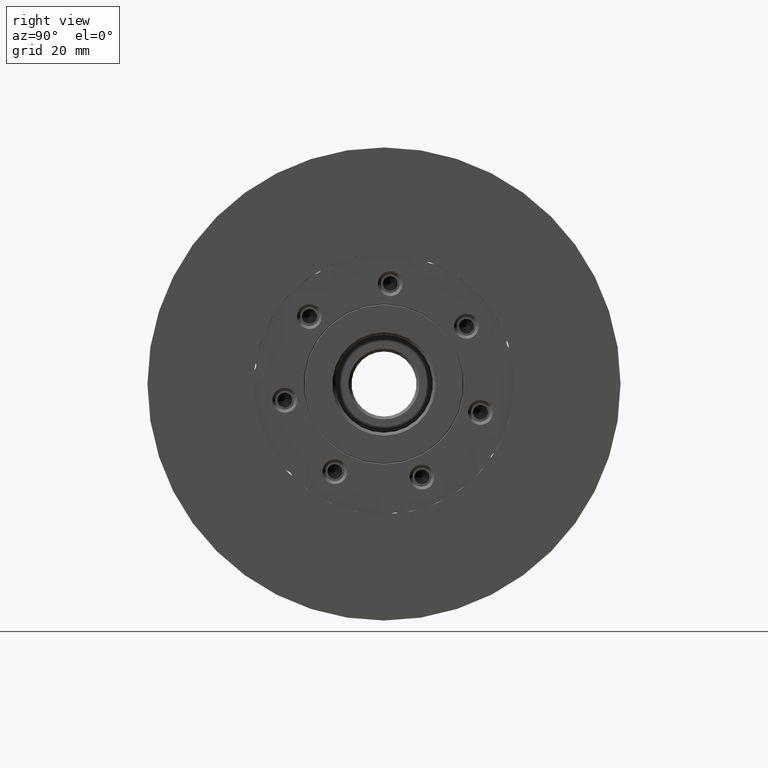
[diagram: clean part render]
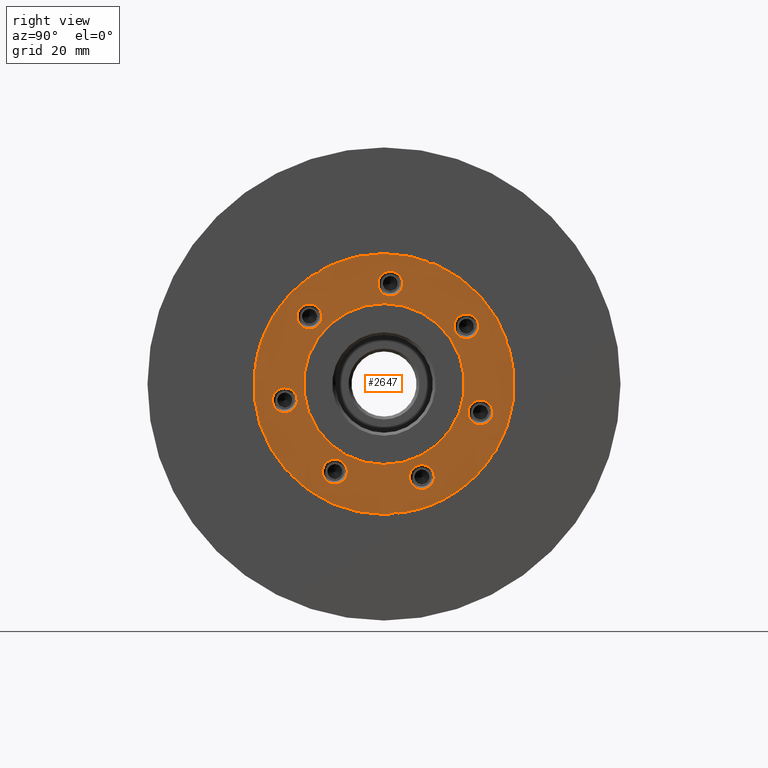
[diagram: same view with one face highlighted and labeled with its STEP entity id]
A machine part, right view. The second image highlights one B-rep face of the part: STEP entity #2647.
In plain terms, the highlighted planar face has unit normal (1, 0, 0).
Its self-contained STEP definition (entity closure, byte-faithful):
#30 = DIRECTION ( 'NONE',  ( 1.000000000000000000, -0.0000000000000000000, -0.0000000000000000000 ) ) ;
#48 = CARTESIAN_POINT ( 'NONE',  ( 2.168404344971008868E-16, 6.407592393557265176, -15.74619826237518083 ) ) ;
#54 = CIRCLE ( 'NONE', #1834, 1.250000000000003553 ) ;
#65 = AXIS2_PLACEMENT_3D ( 'NONE', #4775, #3055, #3079 ) ;
#90 = CARTESIAN_POINT ( 'NONE',  ( 2.168404344971008868E-16, -9.226960871004672882, -12.93521687214729177 ) ) ;
#96 = CARTESIAN_POINT ( 'NONE',  ( 2.168404344971008868E-16, -17.68838749271110800, -4.635116553352929714 ) ) ;
#98 = CARTESIAN_POINT ( 'NONE',  ( 0.0000000000000000000, 2.701493101390960053E-15, 22.05936522491092688 ) ) ;
#109 = CARTESIAN_POINT ( 'NONE',  ( 0.0000000000000000000, 18.74930789117468777, -11.62235121341391952 ) ) ;
#172 = EDGE_CURVE ( 'NONE', #487, #412, #4132, .T. ) ;
#192 = EDGE_CURVE ( 'NONE', #3774, #4154, #4298, .T. ) ;
#228 = CARTESIAN_POINT ( 'NONE',  ( 0.0000000000000000000, 12.50000000000000000, 0.0000000000000000000 ) ) ;
#241 = CIRCLE ( 'NONE', #5239, 1.250000000000005551 ) ;
#244 = CIRCLE ( 'NONE', #2379, 2.100000000000005418 ) ;
#252 = DIRECTION ( 'NONE',  ( 1.000000000000000000, 0.0000000000000000000, -0.0000000000000000000 ) ) ;
#321 = DIRECTION ( 'NONE',  ( -1.000000000000000000, -0.0000000000000000000, -0.0000000000000000000 ) ) ;
#322 = AXIS2_PLACEMENT_3D ( 'NONE', #1557, #3201, #4866 ) ;
#353 = CIRCLE ( 'NONE', #5300, 1.250000000000004441 ) ;
#362 = DIRECTION ( 'NONE',  ( 1.000000000000000000, 0.0000000000000000000, 0.0000000000000000000 ) ) ;
#412 = VERTEX_POINT ( 'NONE', #4202 ) ;
#413 = CARTESIAN_POINT ( 'NONE',  ( 0.0000000000000000000, 0.0000000000000000000, -22.05936522491092688 ) ) ;
#415 = AXIS2_PLACEMENT_3D ( 'NONE', #5198, #3024, #4752 ) ;
#418 = VERTEX_POINT ( 'NONE', #4700 ) ;
#420 = AXIS2_PLACEMENT_3D ( 'NONE', #3725, #2854, #1224 ) ;
#421 = CARTESIAN_POINT ( 'NONE',  ( 0.0000000000000000000, 20.77672234100439042, 7.412381728622628785 ) ) ;
#432 = DIRECTION ( 'NONE',  ( 0.0000000000000000000, -0.4338837391175529579, -0.9009688679024216995 ) ) ;
#440 = CIRCLE ( 'NONE', #5435, 2.100000000000004530 ) ;
#441 = CIRCLE ( 'NONE', #2128, 7.142357545004236030 ) ;
#446 = VERTEX_POINT ( 'NONE', #1816 ) ;
#455 = ORIENTED_EDGE ( 'NONE', *, *, #1678, .F. ) ;
#467 = CARTESIAN_POINT ( 'NONE',  ( 2.168404344971008868E-16, 13.92558475291284736, 9.750799417967803251 ) ) ;
#468 = DIRECTION ( 'NONE',  ( 0.0000000000000000000, 0.0000000000000000000, -1.000000000000000000 ) ) ;
#470 = DIRECTION ( 'NONE',  ( 0.0000000000000000000, 0.7818314824680225872, 0.6234898018587425872 ) ) ;
#471 = EDGE_CURVE ( 'NONE', #3968, #4335, #4358, .T. ) ;
#472 = VERTEX_POINT ( 'NONE', #1794 ) ;
#477 = CARTESIAN_POINT ( 'NONE',  ( 2.168404344971008868E-16, 8.454941009139103514, -16.21349222368342069 ) ) ;
#487 = VERTEX_POINT ( 'NONE', #591 ) ;
#501 = DIRECTION ( 'NONE',  ( 0.0000000000000000000, -0.9749279121818229532, -0.2225209339563177513 ) ) ;
#512 = AXIS2_PLACEMENT_3D ( 'NONE', #3441, #1380, #2598 ) ;
#524 = CIRCLE ( 'NONE', #3208, 2.100000000000004530 ) ;
#557 = ORIENTED_EDGE ( 'NONE', *, *, #4988, .F. ) ;
#581 = ORIENTED_EDGE ( 'NONE', *, *, #4043, .T. ) ;
#591 = CARTESIAN_POINT ( 'NONE',  ( 0.0000000000000000000, -21.93529190647909743, 2.336356801424459562 ) ) ;
#629 = ORIENTED_EDGE ( 'NONE', *, *, #684, .F. ) ;
#635 = CARTESIAN_POINT ( 'NONE',  ( 0.0000000000000000000, 8.177388263898873078, 21.59005143999080190 ) ) ;
#659 = DIRECTION ( 'NONE',  ( 0.0000000000000000000, 0.4338837391175657809, -0.9009688679024154823 ) ) ;
#672 = ORIENTED_EDGE ( 'NONE', *, *, #1714, .T. ) ;
#684 = EDGE_CURVE ( 'NONE', #1924, #4154, #3151, .T. ) ;
#685 = EDGE_LOOP ( 'NONE', ( #5160, #4007 ) ) ;
#686 = CARTESIAN_POINT ( 'NONE',  ( 2.168404344971008868E-16, 6.407592393557265176, -15.74619826237518083 ) ) ;
#700 = CIRCLE ( 'NONE', #1578, 1.250000000000005107 ) ;
#706 = EDGE_CURVE ( 'NONE', #1157, #3325, #1582, .T. ) ;
#721 = EDGE_LOOP ( 'NONE', ( #2164, #2342 ) ) ;
#736 = EDGE_LOOP ( 'NONE', ( #4777, #837 ) ) ;
#737 = DIRECTION ( 'NONE',  ( -1.000000000000000000, -0.0000000000000000000, 0.0000000000000000000 ) ) ;
#756 = EDGE_CURVE ( 'NONE', #4335, #3968, #3690, .T. ) ;
#762 = CARTESIAN_POINT ( 'NONE',  ( 0.0000000000000000000, 1.665519646840398252E-15, 13.59999999999998543 ) ) ;
#767 = CARTESIAN_POINT ( 'NONE',  ( 0.0000000000000000000, -11.78126373550882455, 19.85451648352043463 ) ) ;
#775 = AXIS2_PLACEMENT_3D ( 'NONE', #5075, #3408, #3388 ) ;
#792 = EDGE_CURVE ( 'NONE', #4845, #1670, #3568, .T. ) ;
#814 = CARTESIAN_POINT ( 'NONE',  ( 0.0000000000000000000, 2.603282183109349557, -21.90521663899069793 ) ) ;
#820 = VERTEX_POINT ( 'NONE', #4325 ) ;
#826 = FACE_BOUND ( 'NONE', #4886, .T. ) ;
#837 = ORIENTED_EDGE ( 'NONE', *, *, #2545, .T. ) ;
#849 = AXIS2_PLACEMENT_3D ( 'NONE', #1211, #737, #3606 ) ;
#868 = CARTESIAN_POINT ( 'NONE',  ( 2.168404344971008868E-16, 13.92558475291284736, 7.650799417967799165 ) ) ;
#887 = VERTEX_POINT ( 'NONE', #2612 ) ;
#898 = CARTESIAN_POINT ( 'NONE',  ( 0.0000000000000000000, -16.73514449304702723, -15.90392840768713256 ) ) ;
#948 = EDGE_CURVE ( 'NONE', #1928, #2477, #54, .T. ) ;
#982 = CIRCLE ( 'NONE', #4218, 2.100000000000005418 ) ;
#996 = AXIS2_PLACEMENT_3D ( 'NONE', #4174, #4956, #5409 ) ;
#1000 = CARTESIAN_POINT ( 'NONE',  ( 0.0000000000000000000, 1.025544863782607674, -22.03551342397945234 ) ) ;
#1005 = DIRECTION ( 'NONE',  ( 0.0000000000000000000, 0.0000000000000000000, -1.000000000000000000 ) ) ;
#1017 = CARTESIAN_POINT ( 'NONE',  ( 2.168404344971008868E-16, 14.66409592937600870, -6.117265158434206818 ) ) ;
#1027 = VERTEX_POINT ( 'NONE', #5179 ) ;
#1041 = ORIENTED_EDGE ( 'NONE', *, *, #1943, .T. ) ;
#1056 = EDGE_CURVE ( 'NONE', #4499, #3840, #3744, .T. ) ;
#1060 = DIRECTION ( 'NONE',  ( 1.000000000000000000, 0.0000000000000000000, 0.0000000000000000000 ) ) ;
#1072 = ORIENTED_EDGE ( 'NONE', *, *, #2610, .T. ) ;
#1082 = VERTEX_POINT ( 'NONE', #4492 ) ;
#1095 = CIRCLE ( 'NONE', #2811, 2.100000000000005862 ) ;
#1099 = DIRECTION ( 'NONE',  ( 0.0000000000000000000, 0.0000000000000000000, -1.000000000000000000 ) ) ;
#1100 = CIRCLE ( 'NONE', #4070, 2.100000000000004530 ) ;
#1111 = DIRECTION ( 'NONE',  ( -1.000000000000000000, 0.0000000000000000000, 0.0000000000000000000 ) ) ;
#1115 = CIRCLE ( 'NONE', #3237, 22.05936522491092688 ) ;
#1127 = VERTEX_POINT ( 'NONE', #96 ) ;
#1137 = EDGE_CURVE ( 'NONE', #4993, #472, #4205, .T. ) ;
#1141 = ORIENTED_EDGE ( 'NONE', *, *, #2253, .F. ) ;
#1142 = CARTESIAN_POINT ( 'NONE',  ( 0.0000000000000000000, 0.0000000000000000000, 0.0000000000000000000 ) ) ;
#1157 = VERTEX_POINT ( 'NONE', #5153 ) ;
#1211 = CARTESIAN_POINT ( 'NONE',  ( 2.168404344971008868E-16, 16.30594204255886126, -4.807936574530843110 ) ) ;
#1223 = CIRCLE ( 'NONE', #3920, 2.100000000000005418 ) ;
#1224 = DIRECTION ( 'NONE',  ( 0.0000000000000000000, 0.9749279121818257288, -0.2225209339563046507 ) ) ;
#1259 = ORIENTED_EDGE ( 'NONE', *, *, #706, .T. ) ;
#1265 = CARTESIAN_POINT ( 'NONE',  ( 0.0000000000000000000, 20.91006721983055172, 6.418700580537457512 ) ) ;
#1314 = DIRECTION ( 'NONE',  ( 0.0000000000000000000, 0.0000000000000000000, -1.000000000000000000 ) ) ;
#1324 = EDGE_CURVE ( 'NONE', #1082, #3149, #2337, .T. ) ;
#1336 = ORIENTED_EDGE ( 'NONE', *, *, #4693, .T. ) ;
#1338 = ORIENTED_EDGE ( 'NONE', *, *, #1324, .T. ) ;
#1356 = VERTEX_POINT ( 'NONE', #109 ) ;
#1364 = FACE_BOUND ( 'NONE', #721, .T. ) ;
#1371 = EDGE_CURVE ( 'NONE', #3126, #4845, #2602, .T. ) ;
#1380 = DIRECTION ( 'NONE',  ( 1.000000000000000000, 0.0000000000000000000, 0.0000000000000000000 ) ) ;
#1415 = EDGE_LOOP ( 'NONE', ( #1474, #2112, #629, #3128, #4180, #4421, #4577, #3098, #1682, #3902, #581, #3648, #455, #4779, #2102, #1259, #2255, #4703, #4086, #557, #1915, #3376, #672, #1141 ) ) ;
#1423 = VERTEX_POINT ( 'NONE', #90 ) ;
#1466 = DIRECTION ( 'NONE',  ( 0.0000000000000000000, 0.0000000000000000000, -1.000000000000000000 ) ) ;
#1474 = ORIENTED_EDGE ( 'NONE', *, *, #2048, .F. ) ;
#1484 = AXIS2_PLACEMENT_3D ( 'NONE', #4716, #5095, #1314 ) ;
#1508 = CARTESIAN_POINT ( 'NONE',  ( 0.0000000000000000000, 3.862726624353945759, -28.59018129948315945 ) ) ;
#1519 = AXIS2_PLACEMENT_3D ( 'NONE', #1699, #2101, #2514 ) ;
#1526 = AXIS2_PLACEMENT_3D ( 'NONE', #5370, #321, #2827 ) ;
#1557 = CARTESIAN_POINT ( 'NONE',  ( 0.0000000000000000000, 0.0000000000000000000, 0.0000000000000000000 ) ) ;
#1571 = CARTESIAN_POINT ( 'NONE',  ( 0.0000000000000000000, -15.88501119802953454, 24.08288900755649564 ) ) ;
#1578 = AXIS2_PLACEMENT_3D ( 'NONE', #5227, #4830, #2749 ) ;
#1582 = CIRCLE ( 'NONE', #2927, 22.05936522491092688 ) ;
#1605 = CARTESIAN_POINT ( 'NONE',  ( 0.0000000000000000000, -28.73290329927412046, 2.596033841530536179 ) ) ;
#1627 = EDGE_CURVE ( 'NONE', #887, #5292, #3487, .T. ) ;
#1670 = VERTEX_POINT ( 'NONE', #4909 ) ;
#1678 = EDGE_CURVE ( 'NONE', #2748, #472, #441, .T. ) ;
#1682 = ORIENTED_EDGE ( 'NONE', *, *, #3119, .F. ) ;
#1699 = CARTESIAN_POINT ( 'NONE',  ( 0.0000000000000000000, 8.924618330507765762, 27.43483754948394449 ) ) ;
#1714 = EDGE_CURVE ( 'NONE', #5292, #3050, #1830, .T. ) ;
#1716 = CARTESIAN_POINT ( 'NONE',  ( 0.0000000000000000000, 0.0000000000000000000, 0.0000000000000000000 ) ) ;
#1737 = VERTEX_POINT ( 'NONE', #2914 ) ;
#1746 = CARTESIAN_POINT ( 'NONE',  ( 2.168404344971008868E-16, 13.92558475291284736, 11.85079941796780822 ) ) ;
#1794 = CARTESIAN_POINT ( 'NONE',  ( 0.0000000000000000000, -10.48483495267685228, 19.40834434312044721 ) ) ;
#1816 = CARTESIAN_POINT ( 'NONE',  ( 0.0000000000000000000, 8.636866962865870079, 20.29827882338218359 ) ) ;
#1830 = CIRCLE ( 'NONE', #3052, 22.05936522491092688 ) ;
#1834 = AXIS2_PLACEMENT_3D ( 'NONE', #635, #1060, #4107 ) ;
#1871 = AXIS2_PLACEMENT_3D ( 'NONE', #2963, #2145, #468 ) ;
#1895 = CARTESIAN_POINT ( 'NONE',  ( 0.0000000000000000000, 17.86747489113111342, -12.93711463738374690 ) ) ;
#1902 = AXIS2_PLACEMENT_3D ( 'NONE', #3860, #3917, #2185 ) ;
#1915 = ORIENTED_EDGE ( 'NONE', *, *, #2031, .F. ) ;
#1920 = EDGE_CURVE ( 'NONE', #3149, #1082, #982, .T. ) ;
#1922 = EDGE_LOOP ( 'NONE', ( #1072, #3644 ) ) ;
#1924 = VERTEX_POINT ( 'NONE', #5441 ) ;
#1925 = AXIS2_PLACEMENT_3D ( 'NONE', #1716, #30, #3841 ) ;
#1927 = DIRECTION ( 'NONE',  ( 0.0000000000000000000, 0.9749279121818257288, -0.2225209339563052058 ) ) ;
#1928 = VERTEX_POINT ( 'NONE', #3772 ) ;
#1943 = EDGE_CURVE ( 'NONE', #1027, #1423, #4341, .T. ) ;
#1988 = CARTESIAN_POINT ( 'NONE',  ( 0.0000000000000000000, -10.91069804274972554, 18.95751293024381212 ) ) ;
#2008 = CIRCLE ( 'NONE', #4804, 1.250000000000004441 ) ;
#2031 = EDGE_CURVE ( 'NONE', #887, #2819, #241, .T. ) ;
#2046 = DIRECTION ( 'NONE',  ( 0.0000000000000000000, -0.4338837391175650038, 0.9009688679024158153 ) ) ;
#2048 = EDGE_CURVE ( 'NONE', #3774, #1737, #3257, .T. ) ;
#2093 = CIRCLE ( 'NONE', #1519, 7.142357545004235142 ) ;
#2101 = DIRECTION ( 'NONE',  ( 1.000000000000000000, 0.0000000000000000000, 0.0000000000000000000 ) ) ;
#2102 = ORIENTED_EDGE ( 'NONE', *, *, #4718, .F. ) ;
#2112 = ORIENTED_EDGE ( 'NONE', *, *, #192, .T. ) ;
#2120 = DIRECTION ( 'NONE',  ( -1.000000000000000000, 0.0000000000000000000, -0.0000000000000000000 ) ) ;
#2124 = EDGE_LOOP ( 'NONE', ( #2240, #3304 ) ) ;
#2125 = DIRECTION ( 'NONE',  ( 1.000000000000000000, -0.0000000000000000000, -0.0000000000000000000 ) ) ;
#2128 = AXIS2_PLACEMENT_3D ( 'NONE', #1571, #362, #2046 ) ;
#2130 = DIRECTION ( 'NONE',  ( 1.000000000000000000, 0.0000000000000000000, 0.0000000000000000000 ) ) ;
#2145 = DIRECTION ( 'NONE',  ( 1.000000000000000000, -0.0000000000000000000, -0.0000000000000000000 ) ) ;
#2164 = ORIENTED_EDGE ( 'NONE', *, *, #471, .T. ) ;
#2168 = DIRECTION ( 'NONE',  ( 1.000000000000000000, 0.0000000000000000000, -0.0000000000000000000 ) ) ;
#2177 = DIRECTION ( 'NONE',  ( -1.000000000000000000, 0.0000000000000000000, 0.0000000000000000000 ) ) ;
#2180 = CARTESIAN_POINT ( 'NONE',  ( 0.0000000000000000000, 21.97830011226928804, 7.067837305358956712 ) ) ;
#2185 = DIRECTION ( 'NONE',  ( 0.0000000000000000000, 0.0000000000000000000, -1.000000000000000000 ) ) ;
#2195 = CARTESIAN_POINT ( 'NONE',  ( 2.168404344971008868E-16, -8.315805018857782116, -14.82725149474236837 ) ) ;
#2225 = EDGE_CURVE ( 'NONE', #1356, #1924, #700, .T. ) ;
#2240 = ORIENTED_EDGE ( 'NONE', *, *, #4928, .T. ) ;
#2248 = ORIENTED_EDGE ( 'NONE', *, *, #4427, .T. ) ;
#2253 = EDGE_CURVE ( 'NONE', #1737, #3050, #2451, .T. ) ;
#2255 = ORIENTED_EDGE ( 'NONE', *, *, #4260, .F. ) ;
#2258 = ORIENTED_EDGE ( 'NONE', *, *, #4849, .T. ) ;
#2275 = AXIS2_PLACEMENT_3D ( 'NONE', #228, #252, #4862 ) ;
#2328 = EDGE_CURVE ( 'NONE', #1356, #1670, #5238, .T. ) ;
#2337 = CIRCLE ( 'NONE', #3892, 2.100000000000005418 ) ;
#2342 = ORIENTED_EDGE ( 'NONE', *, *, #756, .T. ) ;
#2352 = DIRECTION ( 'NONE',  ( 1.000000000000000000, -0.0000000000000000000, -0.0000000000000000000 ) ) ;
#2379 = AXIS2_PLACEMENT_3D ( 'NONE', #2917, #4659, #3825 ) ;
#2397 = EDGE_CURVE ( 'NONE', #5326, #2570, #1100, .T. ) ;
#2401 = EDGE_LOOP ( 'NONE', ( #5208, #1338 ) ) ;
#2451 = CIRCLE ( 'NONE', #5134, 7.142357545004237807 ) ;
#2463 = CARTESIAN_POINT ( 'NONE',  ( 2.168404344971008868E-16, 17.94778815574171205, -3.498607990627480291 ) ) ;
#2477 = VERTEX_POINT ( 'NONE', #5396 ) ;
#2487 = CARTESIAN_POINT ( 'NONE',  ( 2.168404344971008868E-16, 1.058978114162429041, 16.96698456867704863 ) ) ;
#2514 = DIRECTION ( 'NONE',  ( 0.0000000000000000000, 0.4338837391175526803, 0.9009688679024216995 ) ) ;
#2545 = EDGE_CURVE ( 'NONE', #4475, #820, #1223, .T. ) ;
#2559 = EDGE_CURVE ( 'NONE', #1127, #418, #1095, .T. ) ;
#2565 = CARTESIAN_POINT ( 'NONE',  ( 2.168404344971008868E-16, -14.65240925935094829, 10.93939031445315813 ) ) ;
#2570 = VERTEX_POINT ( 'NONE', #4227 ) ;
#2580 = CIRCLE ( 'NONE', #4445, 2.100000000000005862 ) ;
#2598 = DIRECTION ( 'NONE',  ( 0.0000000000000000000, -0.7818314824680221431, -0.6234898018587431423 ) ) ;
#2602 = CIRCLE ( 'NONE', #3988, 1.250000000000006217 ) ;
#2610 = EDGE_CURVE ( 'NONE', #418, #1127, #2580, .T. ) ;
#2612 = CARTESIAN_POINT ( 'NONE',  ( 0.0000000000000000000, -15.50306810611603936, -15.69300715042012229 ) ) ;
#2618 = EDGE_CURVE ( 'NONE', #2570, #5326, #4102, .T. ) ;
#2647 = ADVANCED_FACE ( 'NONE', ( #826, #3124, #3185, #4177, #4392, #4573, #5164, #1364, #3252 ), #3616, .T. ) ;
#2683 = CARTESIAN_POINT ( 'NONE',  ( 0.0000000000000000000, 0.0000000000000000000, -13.59999999999998543 ) ) ;
#2727 = EDGE_CURVE ( 'NONE', #2942, #2748, #353, .T. ) ;
#2729 = CIRCLE ( 'NONE', #775, 2.100000000000005418 ) ;
#2746 = AXIS2_PLACEMENT_3D ( 'NONE', #1142, #2352, #1099 ) ;
#2748 = VERTEX_POINT ( 'NONE', #1988 ) ;
#2749 = DIRECTION ( 'NONE',  ( 0.0000000000000000000, -0.7818314824680312469, 0.6234898018587317070 ) ) ;
#2765 = DIRECTION ( 'NONE',  ( 1.000000000000000000, -0.0000000000000000000, -0.0000000000000000000 ) ) ;
#2810 = DIRECTION ( 'NONE',  ( 0.0000000000000000000, -0.9749279121818257288, 0.2225209339563049837 ) ) ;
#2811 = AXIS2_PLACEMENT_3D ( 'NONE', #3356, #3789, #432 ) ;
#2819 = VERTEX_POINT ( 'NONE', #5327 ) ;
#2827 = DIRECTION ( 'NONE',  ( 0.0000000000000000000, 0.0000000000000000000, 1.000000000000000000 ) ) ;
#2854 = DIRECTION ( 'NONE',  ( 1.000000000000000000, 0.0000000000000000000, 0.0000000000000000000 ) ) ;
#2857 = DIRECTION ( 'NONE',  ( 1.000000000000000000, 0.0000000000000000000, 0.0000000000000000000 ) ) ;
#2883 = CARTESIAN_POINT ( 'NONE',  ( 0.0000000000000000000, -21.62428939897386471, 3.289488755088004979 ) ) ;
#2902 = EDGE_CURVE ( 'NONE', #3126, #446, #4897, .T. ) ;
#2914 = CARTESIAN_POINT ( 'NONE',  ( 0.0000000000000000000, 1.604842669057549021, -21.81410342617812503 ) ) ;
#2917 = CARTESIAN_POINT ( 'NONE',  ( 2.168404344971008868E-16, 16.30594204255886126, -4.807936574530843110 ) ) ;
#2927 = AXIS2_PLACEMENT_3D ( 'NONE', #4655, #2125, #4284 ) ;
#2939 = DIRECTION ( 'NONE',  ( -1.000000000000000000, -0.0000000000000000000, -0.0000000000000000000 ) ) ;
#2942 = VERTEX_POINT ( 'NONE', #3834 ) ;
#2944 = CARTESIAN_POINT ( 'NONE',  ( 2.168404344971008868E-16, -12.60506064376911617, 11.40668427576142818 ) ) ;
#2963 = CARTESIAN_POINT ( 'NONE',  ( 0.0000000000000000000, 0.0000000000000000000, 0.0000000000000000000 ) ) ;
#2998 = DIRECTION ( 'NONE',  ( 1.000000000000000000, 0.0000000000000000000, 0.0000000000000000000 ) ) ;
#3024 = DIRECTION ( 'NONE',  ( 1.000000000000000000, 0.0000000000000000000, 0.0000000000000000000 ) ) ;
#3038 = DIRECTION ( 'NONE',  ( 0.0000000000000000000, 0.9749279121818257288, -0.2225209339563052058 ) ) ;
#3050 = VERTEX_POINT ( 'NONE', #1000 ) ;
#3052 = AXIS2_PLACEMENT_3D ( 'NONE', #3334, #3392, #5056 ) ;
#3055 = DIRECTION ( 'NONE',  ( -1.000000000000000000, 0.0000000000000000000, 0.0000000000000000000 ) ) ;
#3079 = DIRECTION ( 'NONE',  ( 0.0000000000000000000, 0.0000000000000000000, -1.000000000000000000 ) ) ;
#3087 = CARTESIAN_POINT ( 'NONE',  ( 2.168404344971008868E-16, 1.058978114162429041, 16.96698456867704863 ) ) ;
#3088 = CARTESIAN_POINT ( 'NONE',  ( 0.0000000000000000000, 0.0000000000000000000, 0.0000000000000000000 ) ) ;
#3098 = ORIENTED_EDGE ( 'NONE', *, *, #2902, .T. ) ;
#3119 = EDGE_CURVE ( 'NONE', #2477, #446, #2093, .T. ) ;
#3124 = FACE_BOUND ( 'NONE', #685, .T. ) ;
#3126 = VERTEX_POINT ( 'NONE', #421 ) ;
#3128 = ORIENTED_EDGE ( 'NONE', *, *, #2225, .F. ) ;
#3149 = VERTEX_POINT ( 'NONE', #3732 ) ;
#3151 = CIRCLE ( 'NONE', #996, 7.142357545004236030 ) ;
#3168 = CARTESIAN_POINT ( 'NONE',  ( 0.0000000000000000000, 0.0000000000000000000, 0.0000000000000000000 ) ) ;
#3185 = FACE_BOUND ( 'NONE', #3759, .T. ) ;
#3201 = DIRECTION ( 'NONE',  ( 1.000000000000000000, -0.0000000000000000000, -0.0000000000000000000 ) ) ;
#3208 = AXIS2_PLACEMENT_3D ( 'NONE', #3767, #4603, #5458 ) ;
#3237 = AXIS2_PLACEMENT_3D ( 'NONE', #3088, #3535, #1005 ) ;
#3252 = FACE_OUTER_BOUND ( 'NONE', #1415, .T. ) ;
#3257 = CIRCLE ( 'NONE', #5057, 1.250000000000004663 ) ;
#3304 = ORIENTED_EDGE ( 'NONE', *, *, #1056, .T. ) ;
#3315 = CARTESIAN_POINT ( 'NONE',  ( 0.0000000000000000000, -21.71124229719788090, 3.903530714414233938 ) ) ;
#3325 = VERTEX_POINT ( 'NONE', #3315 ) ;
#3334 = CARTESIAN_POINT ( 'NONE',  ( 0.0000000000000000000, 0.0000000000000000000, 0.0000000000000000000 ) ) ;
#3340 = DIRECTION ( 'NONE',  ( -1.000000000000000000, 0.0000000000000000000, 0.0000000000000000000 ) ) ;
#3356 = CARTESIAN_POINT ( 'NONE',  ( 2.168404344971008868E-16, -16.77723164056424565, -2.743081930757838460 ) ) ;
#3360 = DIRECTION ( 'NONE',  ( 0.0000000000000000000, -0.7818314824680308028, 0.6234898018587321511 ) ) ;
#3376 = ORIENTED_EDGE ( 'NONE', *, *, #1627, .T. ) ;
#3388 = DIRECTION ( 'NONE',  ( 0.0000000000000000000, -0.9749279121818227312, -0.2225209339563183064 ) ) ;
#3392 = DIRECTION ( 'NONE',  ( 1.000000000000000000, -0.0000000000000000000, -0.0000000000000000000 ) ) ;
#3408 = DIRECTION ( 'NONE',  ( -1.000000000000000000, 0.0000000000000000000, 0.0000000000000000000 ) ) ;
#3409 = EDGE_CURVE ( 'NONE', #487, #4828, #4297, .T. ) ;
#3410 = CIRCLE ( 'NONE', #512, 7.142357545004236030 ) ;
#3415 = CIRCLE ( 'NONE', #849, 2.100000000000005418 ) ;
#3441 = CARTESIAN_POINT ( 'NONE',  ( 0.0000000000000000000, -19.94433317175150933, -20.84568775660764217 ) ) ;
#3486 = DIRECTION ( 'NONE',  ( 0.0000000000000000000, 0.4338837391175652258, -0.9009688679024157043 ) ) ;
#3487 = CIRCLE ( 'NONE', #322, 22.05936522491092688 ) ;
#3535 = DIRECTION ( 'NONE',  ( 1.000000000000000000, -0.0000000000000000000, -0.0000000000000000000 ) ) ;
#3568 = CIRCLE ( 'NONE', #415, 7.142357545004234254 ) ;
#3606 = DIRECTION ( 'NONE',  ( 0.0000000000000000000, 0.7818314824680221431, 0.6234898018587431423 ) ) ;
#3616 = PLANE ( 'NONE',  #2275 ) ;
#3627 = AXIS2_PLACEMENT_3D ( 'NONE', #686, #1111, #1927 ) ;
#3631 = DIRECTION ( 'NONE',  ( -1.000000000000000000, 0.0000000000000000000, 0.0000000000000000000 ) ) ;
#3644 = ORIENTED_EDGE ( 'NONE', *, *, #2559, .T. ) ;
#3648 = ORIENTED_EDGE ( 'NONE', *, *, #1137, .T. ) ;
#3690 = CIRCLE ( 'NONE', #1484, 13.59999999999998543 ) ;
#3719 = DIRECTION ( 'NONE',  ( 0.0000000000000000000, 0.4338837391175657809, -0.9009688679024154823 ) ) ;
#3725 = CARTESIAN_POINT ( 'NONE',  ( 0.0000000000000000000, -22.86838384809460223, 3.168125656631372689 ) ) ;
#3732 = CARTESIAN_POINT ( 'NONE',  ( 2.168404344971008868E-16, 2.700824227345298034, 15.65765598477370624 ) ) ;
#3744 = CIRCLE ( 'NONE', #1526, 2.100000000000004530 ) ;
#3759 = EDGE_LOOP ( 'NONE', ( #2248, #1041 ) ) ;
#3767 = CARTESIAN_POINT ( 'NONE',  ( 2.168404344971008868E-16, -8.315805018857782116, -14.82725149474236837 ) ) ;
#3772 = CARTESIAN_POINT ( 'NONE',  ( 0.0000000000000000000, 7.158841100158736204, 20.86544004397433483 ) ) ;
#3774 = VERTEX_POINT ( 'NONE', #814 ) ;
#3789 = DIRECTION ( 'NONE',  ( -1.000000000000000000, 0.0000000000000000000, 0.0000000000000000000 ) ) ;
#3806 = DIRECTION ( 'NONE',  ( 0.0000000000000000000, 0.0000000000000000000, 1.000000000000000000 ) ) ;
#3823 = EDGE_CURVE ( 'NONE', #820, #4475, #2729, .T. ) ;
#3825 = DIRECTION ( 'NONE',  ( 0.0000000000000000000, 0.7818314824680221431, 0.6234898018587431423 ) ) ;
#3834 = CARTESIAN_POINT ( 'NONE',  ( 0.0000000000000000000, -11.78126373550882455, 18.60451648352043108 ) ) ;
#3840 = VERTEX_POINT ( 'NONE', #868 ) ;
#3841 = DIRECTION ( 'NONE',  ( 0.0000000000000000000, 0.0000000000000000000, -1.000000000000000000 ) ) ;
#3860 = CARTESIAN_POINT ( 'NONE',  ( 0.0000000000000000000, 0.0000000000000000000, 0.0000000000000000000 ) ) ;
#3892 = AXIS2_PLACEMENT_3D ( 'NONE', #3087, #4322, #5111 ) ;
#3902 = ORIENTED_EDGE ( 'NONE', *, *, #948, .F. ) ;
#3917 = DIRECTION ( 'NONE',  ( 1.000000000000000000, -0.0000000000000000000, -0.0000000000000000000 ) ) ;
#3920 = AXIS2_PLACEMENT_3D ( 'NONE', #2944, #3340, #5476 ) ;
#3950 = AXIS2_PLACEMENT_3D ( 'NONE', #2195, #2177, #3486 ) ;
#3968 = VERTEX_POINT ( 'NONE', #2683 ) ;
#3986 = DIRECTION ( 'NONE',  ( 1.000000000000000000, 0.0000000000000000000, 0.0000000000000000000 ) ) ;
#3988 = AXIS2_PLACEMENT_3D ( 'NONE', #2180, #2998, #501 ) ;
#4007 = ORIENTED_EDGE ( 'NONE', *, *, #2397, .T. ) ;
#4019 = CARTESIAN_POINT ( 'NONE',  ( 0.0000000000000000000, -11.78126373550882455, 19.85451648352043463 ) ) ;
#4043 = EDGE_CURVE ( 'NONE', #1928, #4993, #1115, .T. ) ;
#4070 = AXIS2_PLACEMENT_3D ( 'NONE', #48, #5110, #3038 ) ;
#4086 = ORIENTED_EDGE ( 'NONE', *, *, #172, .T. ) ;
#4087 = DIRECTION ( 'NONE',  ( 1.000000000000000000, 0.0000000000000000000, 0.0000000000000000000 ) ) ;
#4102 = CIRCLE ( 'NONE', #3627, 2.100000000000004530 ) ;
#4107 = DIRECTION ( 'NONE',  ( 0.0000000000000000000, -0.4338837391175529024, -0.9009688679024215885 ) ) ;
#4132 = CIRCLE ( 'NONE', #5065, 22.05936522491092688 ) ;
#4154 = VERTEX_POINT ( 'NONE', #1895 ) ;
#4174 = CARTESIAN_POINT ( 'NONE',  ( 0.0000000000000000000, 24.76107448705758785, -14.80568519043260345 ) ) ;
#4177 = FACE_BOUND ( 'NONE', #1922, .T. ) ;
#4180 = ORIENTED_EDGE ( 'NONE', *, *, #2328, .T. ) ;
#4202 = CARTESIAN_POINT ( 'NONE',  ( 0.0000000000000000000, -16.58864136329679084, -14.54072115976124557 ) ) ;
#4205 = CIRCLE ( 'NONE', #1902, 22.05936522491092688 ) ;
#4218 = AXIS2_PLACEMENT_3D ( 'NONE', #2487, #2120, #3360 ) ;
#4227 = CARTESIAN_POINT ( 'NONE',  ( 2.168404344971008868E-16, 4.360243777975425949, -15.27890430106693742 ) ) ;
#4260 = EDGE_CURVE ( 'NONE', #4828, #3325, #4793, .T. ) ;
#4284 = DIRECTION ( 'NONE',  ( 0.0000000000000000000, 0.0000000000000000000, -1.000000000000000000 ) ) ;
#4291 = CARTESIAN_POINT ( 'NONE',  ( 0.0000000000000000000, 1.999999999999992228, -23.00000000000000000 ) ) ;
#4297 = CIRCLE ( 'NONE', #420, 1.250000000000005995 ) ;
#4298 = CIRCLE ( 'NONE', #2746, 22.05936522491092688 ) ;
#4322 = DIRECTION ( 'NONE',  ( -1.000000000000000000, 0.0000000000000000000, -0.0000000000000000000 ) ) ;
#4325 = CARTESIAN_POINT ( 'NONE',  ( 2.168404344971008868E-16, -10.55771202818728227, 11.87397823706969824 ) ) ;
#4335 = VERTEX_POINT ( 'NONE', #762 ) ;
#4341 = CIRCLE ( 'NONE', #3950, 2.100000000000004530 ) ;
#4358 = CIRCLE ( 'NONE', #65, 13.59999999999998543 ) ;
#4366 = VERTEX_POINT ( 'NONE', #2463 ) ;
#4392 = FACE_BOUND ( 'NONE', #736, .T. ) ;
#4421 = ORIENTED_EDGE ( 'NONE', *, *, #792, .F. ) ;
#4427 = EDGE_CURVE ( 'NONE', #1423, #1027, #524, .T. ) ;
#4445 = AXIS2_PLACEMENT_3D ( 'NONE', #4890, #3631, #5303 ) ;
#4475 = VERTEX_POINT ( 'NONE', #2565 ) ;
#4492 = CARTESIAN_POINT ( 'NONE',  ( 2.168404344971008868E-16, -0.5828679990204398420, 18.27631315258038924 ) ) ;
#4499 = VERTEX_POINT ( 'NONE', #1746 ) ;
#4573 = FACE_BOUND ( 'NONE', #2401, .T. ) ;
#4577 = ORIENTED_EDGE ( 'NONE', *, *, #1371, .F. ) ;
#4603 = DIRECTION ( 'NONE',  ( -1.000000000000000000, 0.0000000000000000000, 0.0000000000000000000 ) ) ;
#4631 = VERTEX_POINT ( 'NONE', #1017 ) ;
#4655 = CARTESIAN_POINT ( 'NONE',  ( 0.0000000000000000000, 0.0000000000000000000, 0.0000000000000000000 ) ) ;
#4659 = DIRECTION ( 'NONE',  ( -1.000000000000000000, -0.0000000000000000000, 0.0000000000000000000 ) ) ;
#4693 = EDGE_CURVE ( 'NONE', #4631, #4366, #3415, .T. ) ;
#4700 = CARTESIAN_POINT ( 'NONE',  ( 2.168404344971008868E-16, -15.86607578841737975, -0.8510473081627480951 ) ) ;
#4701 = DIRECTION ( 'NONE',  ( 0.0000000000000000000, 0.0000000000000000000, 1.000000000000000000 ) ) ;
#4703 = ORIENTED_EDGE ( 'NONE', *, *, #3409, .F. ) ;
#4716 = CARTESIAN_POINT ( 'NONE',  ( 0.0000000000000000000, 0.0000000000000000000, 0.0000000000000000000 ) ) ;
#4718 = EDGE_CURVE ( 'NONE', #1157, #2942, #2008, .T. ) ;
#4752 = DIRECTION ( 'NONE',  ( 0.0000000000000000000, 0.9749279121818227312, 0.2225209339563183619 ) ) ;
#4775 = CARTESIAN_POINT ( 'NONE',  ( 0.0000000000000000000, 0.0000000000000000000, 0.0000000000000000000 ) ) ;
#4777 = ORIENTED_EDGE ( 'NONE', *, *, #3823, .T. ) ;
#4779 = ORIENTED_EDGE ( 'NONE', *, *, #2727, .F. ) ;
#4793 = CIRCLE ( 'NONE', #5253, 7.142357545004240471 ) ;
#4804 = AXIS2_PLACEMENT_3D ( 'NONE', #4019, #2857, #659 ) ;
#4828 = VERTEX_POINT ( 'NONE', #2883 ) ;
#4830 = DIRECTION ( 'NONE',  ( 1.000000000000000000, 0.0000000000000000000, 0.0000000000000000000 ) ) ;
#4845 = VERTEX_POINT ( 'NONE', #1265 ) ;
#4849 = EDGE_CURVE ( 'NONE', #4366, #4631, #244, .T. ) ;
#4862 = DIRECTION ( 'NONE',  ( -0.0000000000000000000, 0.0000000000000000000, -1.000000000000000000 ) ) ;
#4866 = DIRECTION ( 'NONE',  ( 0.0000000000000000000, 0.0000000000000000000, -1.000000000000000000 ) ) ;
#4886 = EDGE_LOOP ( 'NONE', ( #1336, #2258 ) ) ;
#4890 = CARTESIAN_POINT ( 'NONE',  ( 2.168404344971008868E-16, -16.77723164056424565, -2.743081930757838460 ) ) ;
#4897 = CIRCLE ( 'NONE', #1871, 22.05936522491092688 ) ;
#4909 = CARTESIAN_POINT ( 'NONE',  ( 0.0000000000000000000, 21.25483189539180273, 5.903195340207269659 ) ) ;
#4928 = EDGE_CURVE ( 'NONE', #3840, #4499, #440, .T. ) ;
#4956 = DIRECTION ( 'NONE',  ( 1.000000000000000000, 0.0000000000000000000, 0.0000000000000000000 ) ) ;
#4988 = EDGE_CURVE ( 'NONE', #2819, #412, #3410, .T. ) ;
#4993 = VERTEX_POINT ( 'NONE', #98 ) ;
#5056 = DIRECTION ( 'NONE',  ( 0.0000000000000000000, 0.0000000000000000000, -1.000000000000000000 ) ) ;
#5057 = AXIS2_PLACEMENT_3D ( 'NONE', #4291, #2168, #4701 ) ;
#5065 = AXIS2_PLACEMENT_3D ( 'NONE', #3168, #2765, #5287 ) ;
#5075 = CARTESIAN_POINT ( 'NONE',  ( 2.168404344971008868E-16, -12.60506064376911617, 11.40668427576142818 ) ) ;
#5095 = DIRECTION ( 'NONE',  ( -1.000000000000000000, 0.0000000000000000000, 0.0000000000000000000 ) ) ;
#5110 = DIRECTION ( 'NONE',  ( -1.000000000000000000, 0.0000000000000000000, 0.0000000000000000000 ) ) ;
#5111 = DIRECTION ( 'NONE',  ( 0.0000000000000000000, -0.7818314824680308028, 0.6234898018587321511 ) ) ;
#5134 = AXIS2_PLACEMENT_3D ( 'NONE', #1508, #3986, #1466 ) ;
#5153 = CARTESIAN_POINT ( 'NONE',  ( 0.0000000000000000000, -11.84979350285215105, 18.60639642880298794 ) ) ;
#5160 = ORIENTED_EDGE ( 'NONE', *, *, #2618, .T. ) ;
#5164 = FACE_BOUND ( 'NONE', #2124, .T. ) ;
#5179 = CARTESIAN_POINT ( 'NONE',  ( 2.168404344971008868E-16, -7.404649166710893127, -16.71928611733744674 ) ) ;
#5198 = CARTESIAN_POINT ( 'NONE',  ( 0.0000000000000000000, 27.01382822713573262, 10.12779384795199000 ) ) ;
#5208 = ORIENTED_EDGE ( 'NONE', *, *, #1920, .T. ) ;
#5227 = CARTESIAN_POINT ( 'NONE',  ( 0.0000000000000000000, 19.22910370048217388, -12.77660247781478198 ) ) ;
#5238 = CIRCLE ( 'NONE', #1925, 22.05936522491092688 ) ;
#5239 = AXIS2_PLACEMENT_3D ( 'NONE', #898, #2130, #470 ) ;
#5253 = AXIS2_PLACEMENT_3D ( 'NONE', #1605, #4087, #2810 ) ;
#5287 = DIRECTION ( 'NONE',  ( 0.0000000000000000000, 0.0000000000000000000, -1.000000000000000000 ) ) ;
#5292 = VERTEX_POINT ( 'NONE', #413 ) ;
#5300 = AXIS2_PLACEMENT_3D ( 'NONE', #767, #5359, #3719 ) ;
#5303 = DIRECTION ( 'NONE',  ( 0.0000000000000000000, -0.4338837391175529579, -0.9009688679024216995 ) ) ;
#5326 = VERTEX_POINT ( 'NONE', #477 ) ;
#5327 = CARTESIAN_POINT ( 'NONE',  ( 0.0000000000000000000, -16.05434978265445878, -14.85558754599113129 ) ) ;
#5359 = DIRECTION ( 'NONE',  ( 1.000000000000000000, 0.0000000000000000000, 0.0000000000000000000 ) ) ;
#5370 = CARTESIAN_POINT ( 'NONE',  ( 2.168404344971008868E-16, 13.92558475291284736, 9.750799417967803251 ) ) ;
#5396 = CARTESIAN_POINT ( 'NONE',  ( 0.0000000000000000000, 8.018871477344900356, 20.35014320613612782 ) ) ;
#5409 = DIRECTION ( 'NONE',  ( 0.0000000000000000000, 0.7818314824680310249, -0.6234898018587319291 ) ) ;
#5435 = AXIS2_PLACEMENT_3D ( 'NONE', #467, #2939, #3806 ) ;
#5441 = CARTESIAN_POINT ( 'NONE',  ( 0.0000000000000000000, 18.05555585814492758, -12.34615449983647295 ) ) ;
#5458 = DIRECTION ( 'NONE',  ( 0.0000000000000000000, 0.4338837391175652258, -0.9009688679024157043 ) ) ;
#5476 = DIRECTION ( 'NONE',  ( 0.0000000000000000000, -0.9749279121818227312, -0.2225209339563183064 ) ) ;